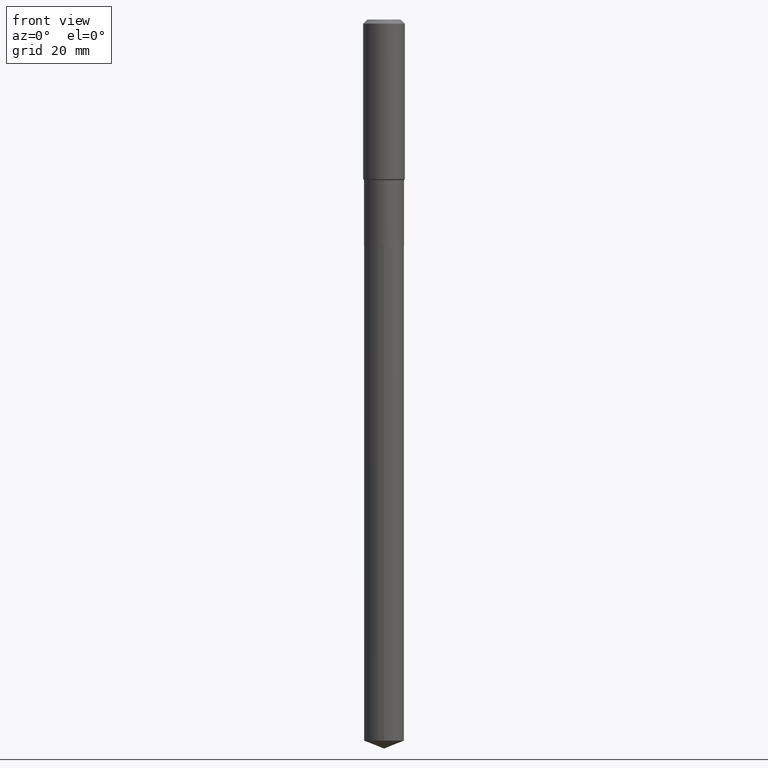
[diagram: clean part render]
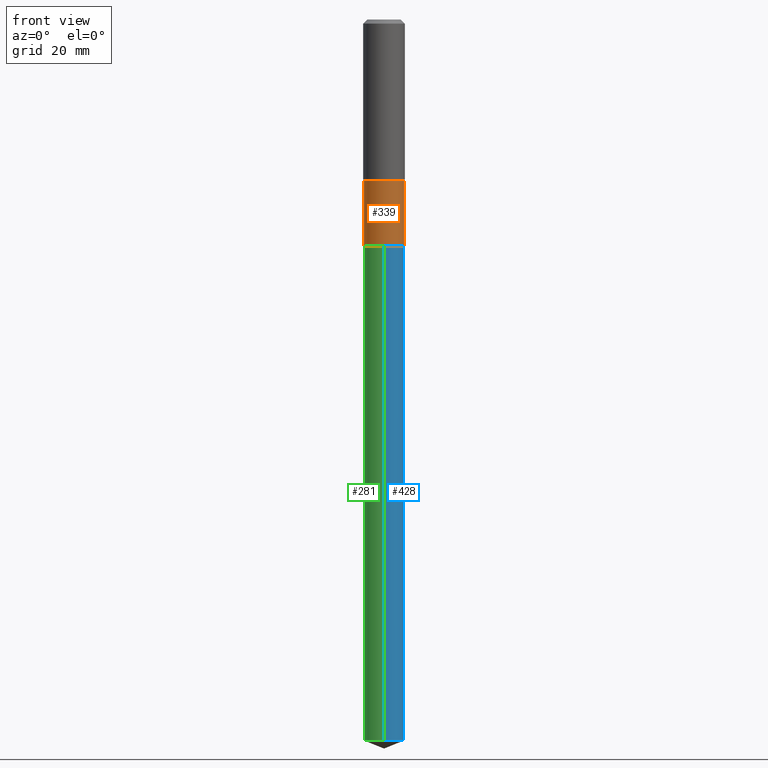
[diagram: same view with three faces highlighted in distinct colors, each labeled with its STEP entity id]
A machine part, front view with three faces highlighted in distinct colors.
Their STEP definitions:

[orange] entity #339 — the highlighted cylindrical surface (edge-blend (fillet) strip) has radius 5.7506 mm, axis along (-0, 0, 1).
#9 = CARTESIAN_POINT ( 'NONE',  ( 6.281675722447761474E-29, -8.968568115086388210E-15, -2.568700000000000205 ) ) ;
#22 = VERTEX_POINT ( 'NONE', #170 ) ;
#45 = LINE ( 'NONE', #470, #60 ) ;
#50 = LINE ( 'NONE', #212, #472 ) ;
#53 = DIRECTION ( 'NONE',  ( -2.445468806185136597E-29, 3.491481338843145583E-15, 1.000000000000000000 ) ) ;
#55 = CARTESIAN_POINT ( 'NONE',  ( -0.2263999999999998791, -6.056529377535375225E-15, -1.822100000000000275 ) ) ;
#60 = VECTOR ( 'NONE', #330, 39.37007874015748143 ) ;
#63 = FACE_OUTER_BOUND ( 'NONE', #278, .T. ) ;
#67 = DIRECTION ( 'NONE',  ( 1.000000000000000000, -6.982962677686267499E-15, 0.000000000000000000 ) ) ;
#84 = AXIS2_PLACEMENT_3D ( 'NONE', #9, #53, #205 ) ;
#89 = DIRECTION ( 'NONE',  ( -2.445468806185136597E-29, 3.491481338843145583E-15, 1.000000000000000000 ) ) ;
#93 = DIRECTION ( 'NONE',  ( -2.445468806185136877E-29, 3.491481338843145188E-15, 1.000000000000000000 ) ) ;
#133 = EDGE_CURVE ( 'NONE', #276, #458, #50, .T. ) ;
#160 = AXIS2_PLACEMENT_3D ( 'NONE', #369, #331, #478 ) ;
#162 = ORIENTED_EDGE ( 'NONE', *, *, #133, .F. ) ;
#163 = VERTEX_POINT ( 'NONE', #363 ) ;
#170 = CARTESIAN_POINT ( 'NONE',  ( 0.2263999999999999624, -1.054951086531456022E-14, -2.568700000000000205 ) ) ;
#201 = ORIENTED_EDGE ( 'NONE', *, *, #425, .F. ) ;
#203 = CIRCLE ( 'NONE', #300, 0.2263999999999998791 ) ;
#205 = DIRECTION ( 'NONE',  ( 1.000000000000000000, -6.982962677686269077E-15, 0.000000000000000000 ) ) ;
#212 = CARTESIAN_POINT ( 'NONE',  ( -0.2263999999999999346, 1.608668753760866356E-15, -1.113646904433710280E-29 ) ) ;
#219 = CYLINDRICAL_SURFACE ( 'NONE', #160, 0.2263999999999999346 ) ;
#256 = CARTESIAN_POINT ( 'NONE',  ( -0.2263999999999999624, -6.056529377535375225E-15, -2.568700000000000205 ) ) ;
#276 = VERTEX_POINT ( 'NONE', #256 ) ;
#278 = EDGE_LOOP ( 'NONE', ( #162, #444, #449, #201 ) ) ;
#300 = AXIS2_PLACEMENT_3D ( 'NONE', #426, #89, #67 ) ;
#330 = DIRECTION ( 'NONE',  ( -2.445468806185136877E-29, 3.491481338843145188E-15, 1.000000000000000000 ) ) ;
#331 = DIRECTION ( 'NONE',  ( -2.445468806185136597E-29, 3.491481338843145583E-15, 1.000000000000000000 ) ) ;
#339 = ADVANCED_FACE ( 'NONE', ( #63 ), #219, .T. ) ;
#351 = CIRCLE ( 'NONE', #84, 0.2263999999999999624 ) ;
#363 = CARTESIAN_POINT ( 'NONE',  ( 0.2263999999999998791, -7.942770897734265382E-15, -1.822100000000000275 ) ) ;
#369 = CARTESIAN_POINT ( 'NONE',  ( 0.000000000000000000, 0.000000000000000000, 0.000000000000000000 ) ) ;
#372 = EDGE_CURVE ( 'NONE', #276, #22, #351, .T. ) ;
#425 = EDGE_CURVE ( 'NONE', #458, #163, #203, .T. ) ;
#426 = CARTESIAN_POINT ( 'NONE',  ( 4.455888711749938171E-29, -6.361828147506095741E-15, -1.822100000000000275 ) ) ;
#444 = ORIENTED_EDGE ( 'NONE', *, *, #372, .T. ) ;
#448 = EDGE_CURVE ( 'NONE', #22, #163, #45, .T. ) ;
#449 = ORIENTED_EDGE ( 'NONE', *, *, #448, .T. ) ;
#458 = VERTEX_POINT ( 'NONE', #55 ) ;
#470 = CARTESIAN_POINT ( 'NONE',  ( 0.2263999999999999346, -1.580942750228170233E-15, 1.103966422040199590E-29 ) ) ;
#472 = VECTOR ( 'NONE', #93, 39.37007874015748143 ) ;
#478 = DIRECTION ( 'NONE',  ( 1.000000000000000000, -6.982962677686265922E-15, 4.876176775795935793E-29 ) ) ;

[blue] entity #428 — the highlighted cylindrical surface (edge-blend (fillet) strip) has radius 5.7506 mm, axis along (-0, 0, 1).
#11 = DIRECTION ( 'NONE',  ( -2.445481556472123923E-29, 3.491463079706479034E-15, 1.000000000000000000 ) ) ;
#20 = DIRECTION ( 'NONE',  ( -6.982962677686265922E-15, -1.000000000000000000, 2.413293280622141084E-15 ) ) ;
#28 = FACE_OUTER_BOUND ( 'NONE', #190, .T. ) ;
#39 = DIRECTION ( 'NONE',  ( -6.982962677686265922E-15, -1.000000000000000000, 2.413293280622141084E-15 ) ) ;
#40 = VECTOR ( 'NONE', #440, 39.37007874015748143 ) ;
#72 = VERTEX_POINT ( 'NONE', #181 ) ;
#73 = EDGE_CURVE ( 'NONE', #111, #188, #468, .T. ) ;
#91 = CARTESIAN_POINT ( 'NONE',  ( 6.282898456850853154E-29, -8.970313855755810503E-15, -2.569200000000000372 ) ) ;
#111 = VERTEX_POINT ( 'NONE', #401 ) ;
#127 = CARTESIAN_POINT ( 'NONE',  ( -1.580942750227970651E-15, -0.2264000000000285229, -8.178818668320777974 ) ) ;
#139 = LINE ( 'NONE', #296, #40 ) ;
#153 = CYLINDRICAL_SURFACE ( 'NONE', #334, 0.2263999999999999624 ) ;
#159 = VECTOR ( 'NONE', #11, 39.37007874015748143 ) ;
#181 = CARTESIAN_POINT ( 'NONE',  ( -1.580942750228107715E-15, -0.2264000000000089552, -2.569199999999999928 ) ) ;
#188 = VERTEX_POINT ( 'NONE', #450 ) ;
#190 = EDGE_LOOP ( 'NONE', ( #342, #441, #386, #374 ) ) ;
#240 = AXIS2_PLACEMENT_3D ( 'NONE', #343, #335, #266 ) ;
#247 = EDGE_CURVE ( 'NONE', #348, #111, #340, .T. ) ;
#266 = DIRECTION ( 'NONE',  ( -6.982962677686265922E-15, -1.000000000000000000, 4.826586561244282169E-15 ) ) ;
#273 = DIRECTION ( 'NONE',  ( -2.445481556472123923E-29, 3.491463079706478639E-15, 1.000000000000000000 ) ) ;
#294 = DIRECTION ( 'NONE',  ( -2.445481556472123923E-29, 3.491463079706478639E-15, 1.000000000000000000 ) ) ;
#296 = CARTESIAN_POINT ( 'NONE',  ( -1.580942750228107715E-15, -0.2264000000000089552, -2.569199999999999928 ) ) ;
#316 = CARTESIAN_POINT ( 'NONE',  ( 6.282898456850853154E-29, -8.970313855755810503E-15, -2.569200000000000372 ) ) ;
#319 = CIRCLE ( 'NONE', #381, 0.2263999999999999624 ) ;
#328 = CARTESIAN_POINT ( 'NONE',  ( 1.608668753760929268E-15, 0.2263999999999909973, -2.569200000000001261 ) ) ;
#334 = AXIS2_PLACEMENT_3D ( 'NONE', #316, #273, #39 ) ;
#335 = DIRECTION ( 'NONE',  ( -2.445481556472123923E-29, 3.491463079706478639E-15, 1.000000000000000000 ) ) ;
#340 = CIRCLE ( 'NONE', #240, 0.2263999999999999624 ) ;
#342 = ORIENTED_EDGE ( 'NONE', *, *, #247, .T. ) ;
#343 = CARTESIAN_POINT ( 'NONE',  ( 2.000111744907103504E-28, -2.855609032743003206E-14, -8.178818668320779750 ) ) ;
#344 = EDGE_CURVE ( 'NONE', #348, #72, #139, .T. ) ;
#348 = VERTEX_POINT ( 'NONE', #127 ) ;
#374 = ORIENTED_EDGE ( 'NONE', *, *, #344, .F. ) ;
#381 = AXIS2_PLACEMENT_3D ( 'NONE', #91, #294, #20 ) ;
#386 = ORIENTED_EDGE ( 'NONE', *, *, #488, .F. ) ;
#401 = CARTESIAN_POINT ( 'NONE',  ( 1.608668753761066530E-15, 0.2263999999999714574, -8.178818668320779750 ) ) ;
#428 = ADVANCED_FACE ( 'NONE', ( #28 ), #153, .T. ) ;
#440 = DIRECTION ( 'NONE',  ( -2.445481556472123923E-29, 3.491463079706479034E-15, 1.000000000000000000 ) ) ;
#441 = ORIENTED_EDGE ( 'NONE', *, *, #73, .T. ) ;
#450 = CARTESIAN_POINT ( 'NONE',  ( 1.608668753761067319E-15, 0.2263999999999909973, -2.569200000000001261 ) ) ;
#468 = LINE ( 'NONE', #328, #159 ) ;
#488 = EDGE_CURVE ( 'NONE', #72, #188, #319, .T. ) ;

[green] entity #281 — the highlighted cylindrical surface (edge-blend (fillet) strip) has radius 5.7506 mm, axis along (-0, 0, 1).
#11 = DIRECTION ( 'NONE',  ( -2.445481556472123923E-29, 3.491463079706479034E-15, 1.000000000000000000 ) ) ;
#19 = DIRECTION ( 'NONE',  ( -6.982962677686265922E-15, -1.000000000000000000, 4.826586561244282169E-15 ) ) ;
#21 = CARTESIAN_POINT ( 'NONE',  ( 6.282898456850853154E-29, -8.970313855755810503E-15, -2.569200000000000372 ) ) ;
#40 = VECTOR ( 'NONE', #440, 39.37007874015748143 ) ;
#64 = DIRECTION ( 'NONE',  ( -6.982962677686265922E-15, -1.000000000000000000, 2.413293280622141084E-15 ) ) ;
#72 = VERTEX_POINT ( 'NONE', #181 ) ;
#73 = EDGE_CURVE ( 'NONE', #111, #188, #468, .T. ) ;
#78 = DIRECTION ( 'NONE',  ( -2.445481556472123923E-29, 3.491463079706478639E-15, 1.000000000000000000 ) ) ;
#80 = DIRECTION ( 'NONE',  ( -2.445481556472123923E-29, 3.491463079706478639E-15, 1.000000000000000000 ) ) ;
#98 = EDGE_CURVE ( 'NONE', #111, #348, #415, .T. ) ;
#108 = CIRCLE ( 'NONE', #446, 0.2263999999999999624 ) ;
#111 = VERTEX_POINT ( 'NONE', #401 ) ;
#127 = CARTESIAN_POINT ( 'NONE',  ( -1.580942750227970651E-15, -0.2264000000000285229, -8.178818668320777974 ) ) ;
#139 = LINE ( 'NONE', #296, #40 ) ;
#148 = CYLINDRICAL_SURFACE ( 'NONE', #375, 0.2263999999999999624 ) ;
#159 = VECTOR ( 'NONE', #11, 39.37007874015748143 ) ;
#169 = EDGE_CURVE ( 'NONE', #188, #72, #108, .T. ) ;
#181 = CARTESIAN_POINT ( 'NONE',  ( -1.580942750228107715E-15, -0.2264000000000089552, -2.569199999999999928 ) ) ;
#188 = VERTEX_POINT ( 'NONE', #450 ) ;
#208 = AXIS2_PLACEMENT_3D ( 'NONE', #399, #396, #19 ) ;
#234 = DIRECTION ( 'NONE',  ( -6.982962677686265922E-15, -1.000000000000000000, 2.413293280622141084E-15 ) ) ;
#241 = ORIENTED_EDGE ( 'NONE', *, *, #344, .T. ) ;
#259 = ORIENTED_EDGE ( 'NONE', *, *, #98, .T. ) ;
#281 = ADVANCED_FACE ( 'NONE', ( #487 ), #148, .T. ) ;
#296 = CARTESIAN_POINT ( 'NONE',  ( -1.580942750228107715E-15, -0.2264000000000089552, -2.569199999999999928 ) ) ;
#328 = CARTESIAN_POINT ( 'NONE',  ( 1.608668753760929268E-15, 0.2263999999999909973, -2.569200000000001261 ) ) ;
#344 = EDGE_CURVE ( 'NONE', #348, #72, #139, .T. ) ;
#348 = VERTEX_POINT ( 'NONE', #127 ) ;
#375 = AXIS2_PLACEMENT_3D ( 'NONE', #21, #78, #234 ) ;
#378 = EDGE_LOOP ( 'NONE', ( #382, #259, #241, #422 ) ) ;
#382 = ORIENTED_EDGE ( 'NONE', *, *, #73, .F. ) ;
#396 = DIRECTION ( 'NONE',  ( -2.445481556472123923E-29, 3.491463079706478639E-15, 1.000000000000000000 ) ) ;
#399 = CARTESIAN_POINT ( 'NONE',  ( 2.000111744907103504E-28, -2.855609032743003206E-14, -8.178818668320779750 ) ) ;
#401 = CARTESIAN_POINT ( 'NONE',  ( 1.608668753761066530E-15, 0.2263999999999714574, -8.178818668320779750 ) ) ;
#415 = CIRCLE ( 'NONE', #208, 0.2263999999999999624 ) ;
#422 = ORIENTED_EDGE ( 'NONE', *, *, #169, .F. ) ;
#440 = DIRECTION ( 'NONE',  ( -2.445481556472123923E-29, 3.491463079706479034E-15, 1.000000000000000000 ) ) ;
#446 = AXIS2_PLACEMENT_3D ( 'NONE', #490, #80, #64 ) ;
#450 = CARTESIAN_POINT ( 'NONE',  ( 1.608668753761067319E-15, 0.2263999999999909973, -2.569200000000001261 ) ) ;
#468 = LINE ( 'NONE', #328, #159 ) ;
#487 = FACE_OUTER_BOUND ( 'NONE', #378, .T. ) ;
#490 = CARTESIAN_POINT ( 'NONE',  ( 6.282898456850853154E-29, -8.970313855755810503E-15, -2.569200000000000372 ) ) ;